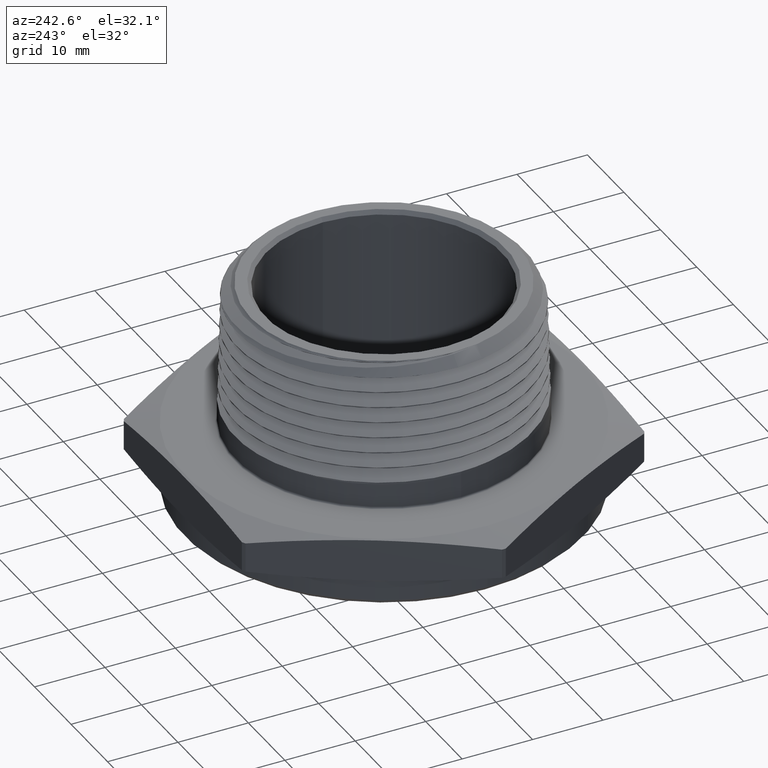
[diagram: clean part render]
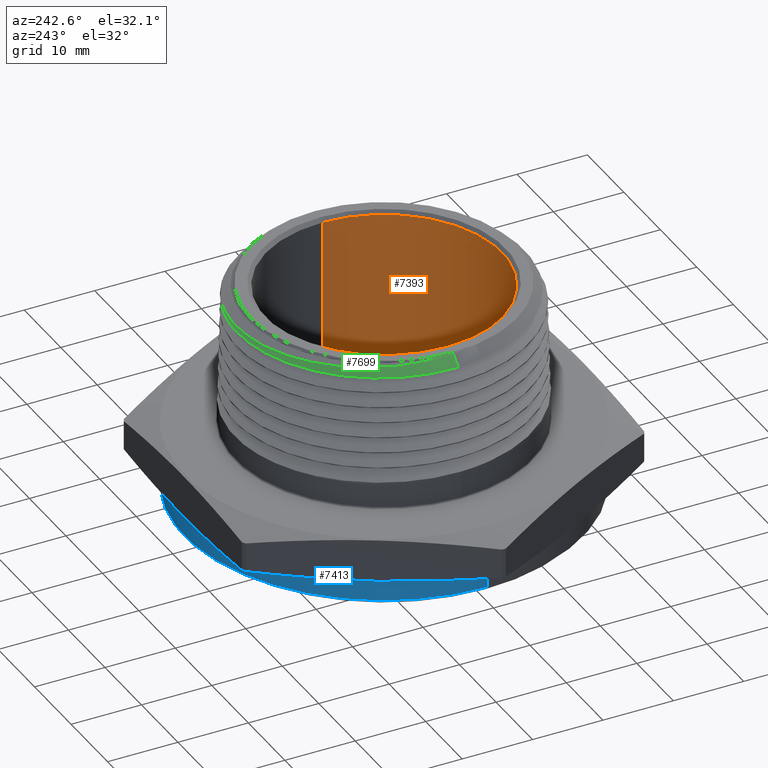
[diagram: same view with three faces highlighted in distinct colors, each labeled with its STEP entity id]
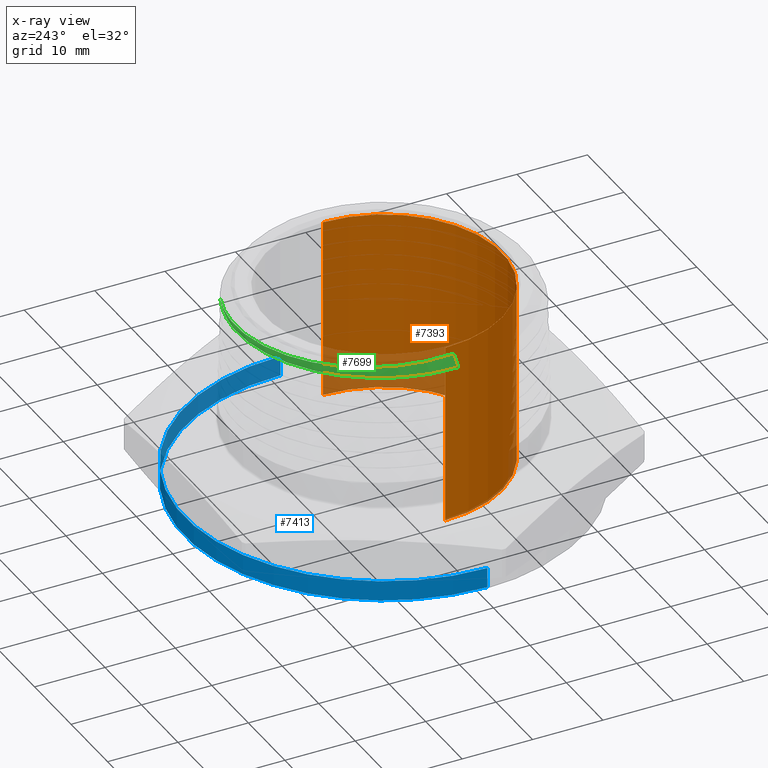
[diagram: x-ray of the same camera — body ghosted, the three highlighted faces saturated]
A machine part, auxiliary view with three faces highlighted in distinct colors.
The next image is the same camera in x-ray (body ghosted, the three faces saturated) — at least one of them is partly hidden behind the body in this view.
Their STEP definitions:

[orange] entity #7393 — the highlighted cylindrical surface (partial cylindrical patch) has radius 16.764 mm, axis along (-0, -0, 1).
#155 = EDGE_CURVE ( 'NONE', #294, #276, #3245, .T. ) ;
#157 = EDGE_CURVE ( 'NONE', #285, #294, #3248, .T. ) ;
#158 = EDGE_CURVE ( 'NONE', #285, #272, #3250, .T. ) ;
#161 = EDGE_CURVE ( 'NONE', #272, #276, #3254, .T. ) ;
#213 = AXIS2_PLACEMENT_3D ( 'NONE', #997, #998, #999 ) ;
#215 = AXIS2_PLACEMENT_3D ( 'NONE', #1008, #1009, #1010 ) ;
#236 = AXIS2_PLACEMENT_3D ( 'NONE', #5844, #5845, #5843 ) ;
#272 = VERTEX_POINT ( 'NONE', #5689 ) ;
#276 = VERTEX_POINT ( 'NONE', #1073 ) ;
#285 = VERTEX_POINT ( 'NONE', #5717 ) ;
#294 = VERTEX_POINT ( 'NONE', #5726 ) ;
#444 = EDGE_LOOP ( 'NONE', ( #466, #467, #7356, #7359 ) ) ;
#466 = ORIENTED_EDGE ( 'NONE', *, *, #157, .F. ) ;
#467 = ORIENTED_EDGE ( 'NONE', *, *, #158, .T. ) ;
#985 = DIRECTION ( 'NONE',  ( -0.0000000000000000000, -0.0000000000000000000, 1.000000000000000000 ) ) ;
#989 = CARTESIAN_POINT ( 'NONE',  ( 0.6600000000000000300, 0.0000000000000000000, -0.1499999999999999900 ) ) ;
#990 = CARTESIAN_POINT ( 'NONE',  ( -0.6600000000000000300, 8.082668874372531800E-017, -0.1499999999999999900 ) ) ;
#991 = DIRECTION ( 'NONE',  ( -0.0000000000000000000, -0.0000000000000000000, 1.000000000000000000 ) ) ;
#997 = CARTESIAN_POINT ( 'NONE',  ( 3.673940397442165500E-018, 0.0000000000000000000, 0.01748031496062993700 ) ) ;
#998 = DIRECTION ( 'NONE',  ( -0.0000000000000000000, -0.0000000000000000000, 1.000000000000000000 ) ) ;
#999 = DIRECTION ( 'NONE',  ( 1.000000000000000000, 0.0000000000000000000, 0.0000000000000000000 ) ) ;
#1008 = CARTESIAN_POINT ( 'NONE',  ( 3.673940397442165500E-018, 0.0000000000000000000, 1.030000000000000000 ) ) ;
#1009 = DIRECTION ( 'NONE',  ( -0.0000000000000000000, -0.0000000000000000000, 1.000000000000000000 ) ) ;
#1010 = DIRECTION ( 'NONE',  ( 1.000000000000000000, 0.0000000000000000000, 0.0000000000000000000 ) ) ;
#1073 = CARTESIAN_POINT ( 'NONE',  ( 0.6599999999999999200, 0.0000000000000000000, 1.030000000000000000 ) ) ;
#3245 = LINE ( 'NONE', #989, #3247 ) ;
#3247 = VECTOR ( 'NONE', #985, 39.37007874015748100 ) ;
#3248 = CIRCLE ( 'NONE', #213, 0.6600000000000000300 ) ;
#3250 = LINE ( 'NONE', #990, #3252 ) ;
#3252 = VECTOR ( 'NONE', #991, 39.37007874015748100 ) ;
#3254 = CIRCLE ( 'NONE', #215, 0.6599999999999999200 ) ;
#3272 = FACE_OUTER_BOUND ( 'NONE', #444, .T. ) ;
#3285 = CYLINDRICAL_SURFACE ( 'NONE', #236, 0.6600000000000000300 ) ;
#5689 = CARTESIAN_POINT ( 'NONE',  ( -0.6599999999999999200, 8.082668874372529300E-017, 1.030000000000000000 ) ) ;
#5717 = CARTESIAN_POINT ( 'NONE',  ( -0.6600000000000000300, 8.082668874372531800E-017, 0.01748031496062993700 ) ) ;
#5726 = CARTESIAN_POINT ( 'NONE',  ( 0.6600000000000000300, 0.0000000000000000000, 0.01748031496062993700 ) ) ;
#5843 = DIRECTION ( 'NONE',  ( 1.000000000000000000, 0.0000000000000000000, 0.0000000000000000000 ) ) ;
#5844 = CARTESIAN_POINT ( 'NONE',  ( 3.673940397442165500E-018, 0.0000000000000000000, -0.1499999999999999900 ) ) ;
#5845 = DIRECTION ( 'NONE',  ( -0.0000000000000000000, -0.0000000000000000000, 1.000000000000000000 ) ) ;
#7356 = ORIENTED_EDGE ( 'NONE', *, *, #161, .T. ) ;
#7359 = ORIENTED_EDGE ( 'NONE', *, *, #155, .F. ) ;
#7393 = ADVANCED_FACE ( 'NONE', ( #3272 ), #3285, .F. ) ;

[blue] entity #7413 — the highlighted cylindrical surface (partial cylindrical patch) has radius 28.321 mm, axis along (-0, -0, 1).
#136 = EDGE_CURVE ( 'NONE', #299, #290, #3221, .T. ) ;
#137 = EDGE_CURVE ( 'NONE', #290, #288, #3220, .T. ) ;
#138 = EDGE_CURVE ( 'NONE', #296, #288, #3223, .T. ) ;
#150 = EDGE_CURVE ( 'NONE', #296, #299, #3234, .T. ) ;
#200 = AXIS2_PLACEMENT_3D ( 'NONE', #944, #945, #946 ) ;
#210 = AXIS2_PLACEMENT_3D ( 'NONE', #982, #983, #984 ) ;
#255 = AXIS2_PLACEMENT_3D ( 'NONE', #5904, #5905, #5903 ) ;
#288 = VERTEX_POINT ( 'NONE', #5720 ) ;
#290 = VERTEX_POINT ( 'NONE', #5722 ) ;
#296 = VERTEX_POINT ( 'NONE', #5728 ) ;
#299 = VERTEX_POINT ( 'NONE', #5731 ) ;
#426 = EDGE_LOOP ( 'NONE', ( #7343, #7386, #7342, #7382 ) ) ;
#922 = CARTESIAN_POINT ( 'NONE',  ( -1.115000000000000200, 1.365481181049298900E-016, -0.1499999999999999900 ) ) ;
#923 = DIRECTION ( 'NONE',  ( -0.0000000000000000000, -0.0000000000000000000, 1.000000000000000000 ) ) ;
#939 = DIRECTION ( 'NONE',  ( -0.0000000000000000000, -0.0000000000000000000, 1.000000000000000000 ) ) ;
#943 = CARTESIAN_POINT ( 'NONE',  ( 1.115000000000000200, 0.0000000000000000000, -0.1499999999999999900 ) ) ;
#944 = CARTESIAN_POINT ( 'NONE',  ( 0.0000000000000000000, 0.0000000000000000000, -0.008097840331950385800 ) ) ;
#945 = DIRECTION ( 'NONE',  ( -6.274932739761922300E-017, -0.0000000000000000000, -1.000000000000000000 ) ) ;
#946 = DIRECTION ( 'NONE',  ( -1.000000000000000000, 0.0000000000000000000, 6.316632832884014900E-017 ) ) ;
#982 = CARTESIAN_POINT ( 'NONE',  ( 0.0000000000000000000, 0.0000000000000000000, -0.1200000000000012600 ) ) ;
#983 = DIRECTION ( 'NONE',  ( 0.0000000000000000000, 0.0000000000000000000, 1.000000000000000000 ) ) ;
#984 = DIRECTION ( 'NONE',  ( -1.000000000000000000, 0.0000000000000000000, 0.0000000000000000000 ) ) ;
#3220 = CIRCLE ( 'NONE', #200, 1.115000000000000200 ) ;
#3221 = LINE ( 'NONE', #922, #3222 ) ;
#3222 = VECTOR ( 'NONE', #923, 39.37007874015748100 ) ;
#3223 = LINE ( 'NONE', #943, #3225 ) ;
#3225 = VECTOR ( 'NONE', #939, 39.37007874015748100 ) ;
#3234 = CIRCLE ( 'NONE', #210, 1.115000000000000200 ) ;
#3321 = CYLINDRICAL_SURFACE ( 'NONE', #255, 1.115000000000000200 ) ;
#3322 = FACE_OUTER_BOUND ( 'NONE', #426, .T. ) ;
#5720 = CARTESIAN_POINT ( 'NONE',  ( 1.115000000000000200, 0.0000000000000000000, -0.008097840331950457000 ) ) ;
#5722 = CARTESIAN_POINT ( 'NONE',  ( -1.115000000000000200, 1.365481181049298900E-016, -0.008097840331950316400 ) ) ;
#5728 = CARTESIAN_POINT ( 'NONE',  ( 1.115000000000000200, 0.0000000000000000000, -0.1200000000000012600 ) ) ;
#5731 = CARTESIAN_POINT ( 'NONE',  ( -1.115000000000000200, 1.365481181049298900E-016, -0.1200000000000012600 ) ) ;
#5903 = DIRECTION ( 'NONE',  ( 1.000000000000000000, 0.0000000000000000000, 0.0000000000000000000 ) ) ;
#5904 = CARTESIAN_POINT ( 'NONE',  ( 0.0000000000000000000, 0.0000000000000000000, -0.1499999999999999900 ) ) ;
#5905 = DIRECTION ( 'NONE',  ( -0.0000000000000000000, -0.0000000000000000000, 1.000000000000000000 ) ) ;
#7342 = ORIENTED_EDGE ( 'NONE', *, *, #137, .T. ) ;
#7343 = ORIENTED_EDGE ( 'NONE', *, *, #150, .T. ) ;
#7382 = ORIENTED_EDGE ( 'NONE', *, *, #138, .F. ) ;
#7386 = ORIENTED_EDGE ( 'NONE', *, *, #136, .T. ) ;
#7413 = ADVANCED_FACE ( 'NONE', ( #3322 ), #3321, .T. ) ;

[green] entity #7699 — the highlighted conical surface has half-angle 45 deg.
#54 = EDGE_CURVE ( 'NONE', #6983, #7713, #3155, .T. ) ;
#56 = EDGE_CURVE ( 'NONE', #6983, #313, #7280, .T. ) ;
#57 = EDGE_CURVE ( 'NONE', #262, #7713, #7281, .T. ) ;
#100 = EDGE_CURVE ( 'NONE', #262, #313, #3184, .T. ) ;
#185 = AXIS2_PLACEMENT_3D ( 'NONE', #676, #677, #678 ) ;
#262 = VERTEX_POINT ( 'NONE', #5698 ) ;
#313 = VERTEX_POINT ( 'NONE', #5745 ) ;
#434 = EDGE_LOOP ( 'NONE', ( #5016, #5015, #5014, #5013 ) ) ;
#676 = CARTESIAN_POINT ( 'NONE',  ( 0.0000000000000000000, 0.0000000000000000000, 0.9790800544205556800 ) ) ;
#677 = DIRECTION ( 'NONE',  ( -0.0000000000000000000, -0.0000000000000000000, -1.000000000000000000 ) ) ;
#678 = DIRECTION ( 'NONE',  ( -1.000000000000000000, 0.0000000000000000000, 0.0000000000000000000 ) ) ;
#1139 = CARTESIAN_POINT ( 'NONE',  ( 0.0003822257375215578600, 0.8159603825915020500, 0.9796870384935335600 ) ) ;
#1142 = CARTESIAN_POINT ( 'NONE',  ( -0.7506761221030494600, 0.06591039529651300500, 1.040892532082198000 ) ) ;
#1143 = CARTESIAN_POINT ( 'NONE',  ( -0.7449228993975856000, 0.1309679138996525100, 1.038105727201005000 ) ) ;
#1144 = CARTESIAN_POINT ( 'NONE',  ( -0.7399597935217191400, 0.1631162304881085800, 1.036722561933940200 ) ) ;
#1145 = CARTESIAN_POINT ( 'NONE',  ( -0.7259289262074826200, 0.2266634002698999500, 1.033952497875803700 ) ) ;
#1146 = CARTESIAN_POINT ( 'NONE',  ( -0.7168522771483161200, 0.2580610325353321900, 1.032574836481218400 ) ) ;
#1147 = CARTESIAN_POINT ( 'NONE',  ( -0.6944567877345866300, 0.3200805533608012700, 1.029788786022279000 ) ) ;
#1148 = CARTESIAN_POINT ( 'NONE',  ( -0.6813661797325345500, 0.3500688601822691300, 1.028406687094236800 ) ) ;
#1149 = CARTESIAN_POINT ( 'NONE',  ( -0.6515882689974661400, 0.4079611058545262200, 1.025673281799201400 ) ) ;
#1150 = CARTESIAN_POINT ( 'NONE',  ( -0.6348996847766226200, 0.4358885387954430900, 1.024313566081411800 ) ) ;
#1151 = CARTESIAN_POINT ( 'NONE',  ( -0.6071633458218564900, 0.4762482874260500800, 1.022261983728518300 ) ) ;
#1152 = CARTESIAN_POINT ( 'NONE',  ( -0.5974644361580768700, 0.4894447529881411100, 1.021577850412735100 ) ) ;
#1153 = CARTESIAN_POINT ( 'NONE',  ( -0.5771403219209828600, 0.5153130614956921200, 1.020207232965090000 ) ) ;
#1154 = CARTESIAN_POINT ( 'NONE',  ( -0.5665355862329734000, 0.5279522497029794900, 1.019522336814195700 ) ) ;
#1155 = CARTESIAN_POINT ( 'NONE',  ( -0.5119525011951384700, 0.5889777180993915900, 1.016120697558582400 ) ) ;
#1156 = CARTESIAN_POINT ( 'NONE',  ( -0.4628360794540839500, 0.6316230588339206700, 1.013451398329416000 ) ) ;
#1157 = CARTESIAN_POINT ( 'NONE',  ( -0.3946668343143057700, 0.6772478007755833300, 1.010067790687665800 ) ) ;
#1158 = CARTESIAN_POINT ( 'NONE',  ( -0.3806466182875170600, 0.6860042240503931900, 1.009387353592761300 ) ) ;
#1159 = CARTESIAN_POINT ( 'NONE',  ( -0.3522727548204673800, 0.7025047878489671900, 1.008040009997463800 ) ) ;
#1160 = CARTESIAN_POINT ( 'NONE',  ( -0.3378876987306346800, 0.7102735392127106400, 1.007371438901322600 ) ) ;
#1161 = CARTESIAN_POINT ( 'NONE',  ( -0.2941534175909266100, 0.7321713693805336200, 1.005372093912726900 ) ) ;
#1162 = CARTESIAN_POINT ( 'NONE',  ( -0.2642300219906057500, 0.7449033299194948200, 1.004041013288028400 ) ) ;
#1163 = CARTESIAN_POINT ( 'NONE',  ( -0.2028539524398910400, 0.7666470470906512300, 1.001386933545837900 ) ) ;
#1164 = CARTESIAN_POINT ( 'NONE',  ( -0.1713288095590431700, 0.7756731071228136800, 1.000062603684705800 ) ) ;
#1165 = CARTESIAN_POINT ( 'NONE',  ( -0.1070058451641533700, 0.7898257579078494800, 0.9973880648691980700 ) ) ;
#1166 = CARTESIAN_POINT ( 'NONE',  ( -0.07472610461773109000, 0.7948402432928151100, 0.9960669764498369900 ) ) ;
#1167 = CARTESIAN_POINT ( 'NONE',  ( -0.009939416548406042300, 0.8009014364473979700, 0.9934468662463981100 ) ) ;
#1168 = CARTESIAN_POINT ( 'NONE',  ( 0.02256668886448477000, 0.8019565391017239300, 0.9921388845479897100 ) ) ;
#1169 = CARTESIAN_POINT ( 'NONE',  ( 0.07149562436769388300, 0.8005583028784966100, 0.9901708631367416300 ) ) ;
#1170 = CARTESIAN_POINT ( 'NONE',  ( 0.08783375107054654200, 0.7995929425625224500, 0.9895149483176796100 ) ) ;
#1171 = CARTESIAN_POINT ( 'NONE',  ( 0.1205679484613883100, 0.7966446188723239600, 0.9882007118084164000 ) ) ;
#1172 = CARTESIAN_POINT ( 'NONE',  ( 0.1369578616805201800, 0.7946580508458659400, 0.9875426151566119000 ) ) ;
#1173 = CARTESIAN_POINT ( 'NONE',  ( 0.2180233896296134000, 0.7823187839640984900, 0.9842684018269064500 ) ) ;
#1174 = CARTESIAN_POINT ( 'NONE',  ( 0.2809038887012196800, 0.7647662564041404200, 0.9816943008458067800 ) ) ;
#1175 = CARTESIAN_POINT ( 'NONE',  ( 0.3418004454692851700, 0.7394995440887116600, 0.9790800544205556800 ) ) ;
#1176 = CARTESIAN_POINT ( 'NONE',  ( 0.05590739452915700200, 0.8127493361839033300, 0.9790800544205557900 ) ) ;
#1178 = CARTESIAN_POINT ( 'NONE',  ( -0.05498116553721908000, 0.8134977100854340300, 0.9802920251006582700 ) ) ;
#1179 = CARTESIAN_POINT ( 'NONE',  ( -0.1649272569544739400, 0.7972607859240175000, 0.9815073115700141400 ) ) ;
#1180 = CARTESIAN_POINT ( 'NONE',  ( -0.2181553019147744200, 0.7836967351222724500, 0.9821086057646668500 ) ) ;
#1181 = CARTESIAN_POINT ( 'NONE',  ( -0.2954743366682828200, 0.7554774109732928000, 0.9830104837367108500 ) ) ;
#1182 = CARTESIAN_POINT ( 'NONE',  ( -0.3208231469754382300, 0.7447472726691568600, 0.9833123193137062200 ) ) ;
#1183 = CARTESIAN_POINT ( 'NONE',  ( -0.3581911840549490400, 0.7266077182204866400, 0.9837697464533656800 ) ) ;
#1184 = CARTESIAN_POINT ( 'NONE',  ( -0.3705667807975460100, 0.7202025319975600100, 0.9839231178207680200 ) ) ;
#1185 = CARTESIAN_POINT ( 'NONE',  ( -0.3948348412860620500, 0.7068405658508819500, 0.9842277394045495500 ) ) ;
#1186 = CARTESIAN_POINT ( 'NONE',  ( -0.4067522574446206200, 0.6998736019427727100, 0.9843792871868085600 ) ) ;
#1187 = CARTESIAN_POINT ( 'NONE',  ( -0.4652748672659356400, 0.6636334681920479400, 0.9851351520981411800 ) ) ;
#1188 = CARTESIAN_POINT ( 'NONE',  ( -0.5087168957607036700, 0.6301843679536522900, 0.9857382211666146900 ) ) ;
#1189 = CARTESIAN_POINT ( 'NONE',  ( -0.5687854551670535900, 0.5732852564311949900, 0.9866488083747130300 ) ) ;
#1190 = CARTESIAN_POINT ( 'NONE',  ( -0.5880443410477014200, 0.5530660650594743100, 0.9869570876102770100 ) ) ;
#1191 = CARTESIAN_POINT ( 'NONE',  ( -0.6240443819350095500, 0.5111371493809259100, 0.9875681593302893000 ) ) ;
#1192 = CARTESIAN_POINT ( 'NONE',  ( -0.6408541423436131500, 0.4893862832688085600, 0.9878708996480937100 ) ) ;
#1193 = CARTESIAN_POINT ( 'NONE',  ( -0.6721428447988714300, 0.4443446395139083500, 0.9884759343227078600 ) ) ;
#1194 = CARTESIAN_POINT ( 'NONE',  ( -0.6866204701002499600, 0.4210530116392690000, 0.9887797085748422100 ) ) ;
#1195 = CARTESIAN_POINT ( 'NONE',  ( -0.7132228679675183300, 0.3729153165485412100, 0.9893890398495041000 ) ) ;
#1196 = CARTESIAN_POINT ( 'NONE',  ( -0.7253850807383190900, 0.3479817928139756200, 0.9896950178322071500 ) ) ;
#1197 = CARTESIAN_POINT ( 'NONE',  ( -0.7579460572087699500, 0.2713365484212695300, 0.9906161185133468500 ) ) ;
#1198 = CARTESIAN_POINT ( 'NONE',  ( -0.7740873773467454900, 0.2187803935220445400, 0.9912240134591831000 ) ) ;
#1199 = CARTESIAN_POINT ( 'NONE',  ( -0.7901546050542306300, 0.1378108712265538000, 0.9921396870700507400 ) ) ;
#1200 = CARTESIAN_POINT ( 'NONE',  ( -0.7941444470800658200, 0.1104143311620601200, 0.9924481287959896500 ) ) ;
#1201 = CARTESIAN_POINT ( 'NONE',  ( -0.7992705265458894800, 0.05507664614157498800, 0.9930660592367759300 ) ) ;
#1202 = CARTESIAN_POINT ( 'NONE',  ( -0.8003785532827262200, 0.02749562575169247800, 0.9933714467172737300 ) ) ;
#1203 = CARTESIAN_POINT ( 'NONE',  ( -0.8000725450993546600, -2.945273618169283600E-016, 0.9936774549006445200 ) ) ;
#3155 = LINE ( 'NONE', #5636, #3156 ) ;
#3156 = VECTOR ( 'NONE', #5635, 39.37007874015748100 ) ;
#3184 = CIRCLE ( 'NONE', #185, 0.8146699455794440500 ) ;
#3358 = FACE_OUTER_BOUND ( 'NONE', #434, .T. ) ;
#3373 = CONICAL_SURFACE ( 'NONE', #7317, 0.8252827931274610000, 0.7853981633974541600 ) ;
#4903 = DIRECTION ( 'NONE',  ( -1.000000000000000000, 0.0000000000000000000, 0.0000000000000000000 ) ) ;
#4904 = CARTESIAN_POINT ( 'NONE',  ( 0.0000000000000000000, 0.0000000000000000000, 0.9684672068725388400 ) ) ;
#4905 = DIRECTION ( 'NONE',  ( -0.0000000000000000000, -0.0000000000000000000, -1.000000000000000000 ) ) ;
#4943 = CARTESIAN_POINT ( 'NONE',  ( -0.8000725450993546600, -2.945273618169283600E-016, 0.9936774549006445200 ) ) ;
#5013 = ORIENTED_EDGE ( 'NONE', *, *, #57, .T. ) ;
#5014 = ORIENTED_EDGE ( 'NONE', *, *, #100, .F. ) ;
#5015 = ORIENTED_EDGE ( 'NONE', *, *, #56, .T. ) ;
#5016 = ORIENTED_EDGE ( 'NONE', *, *, #54, .F. ) ;
#5635 = DIRECTION ( 'NONE',  ( -0.7071067811865516800, 0.0000000000000000000, -0.7071067811865433500 ) ) ;
#5636 = CARTESIAN_POINT ( 'NONE',  ( -0.8252827931274610000, 0.0000000000000000000, 0.9684672068725388400 ) ) ;
#5640 = CARTESIAN_POINT ( 'NONE',  ( -0.7500252292204397900, -1.306323699306776900E-013, 1.043724770779559200 ) ) ;
#5642 = CARTESIAN_POINT ( 'NONE',  ( -0.7514364348563948900, 0.03280875392348253000, 1.042313565143610000 ) ) ;
#5698 = CARTESIAN_POINT ( 'NONE',  ( 0.05590739452915700200, 0.8127493361839033300, 0.9790800544205557900 ) ) ;
#5745 = CARTESIAN_POINT ( 'NONE',  ( 0.3418004454692851700, 0.7394995440887116600, 0.9790800544205556800 ) ) ;
#5805 = CARTESIAN_POINT ( 'NONE',  ( -0.7500252292204397900, -1.306323699306776900E-013, 1.043724770779559200 ) ) ;
#6983 = VERTEX_POINT ( 'NONE', #5805 ) ;
#7280 = B_SPLINE_CURVE_WITH_KNOTS ( 'NONE', 3,
 ( #5640, #5642, #1142, #1143, #1144, #1145, #1146, #1147, #1148, #1149, #1150, #1151, #1152, #1153, #1154, #1155, #1156, #1157, #1158, #1159, #1160, #1161, #1162, #1163, #1164, #1165, #1166, #1167, #1168, #1169, #1170, #1171, #1172, #1173, #1174, #1175 ),
 .UNSPECIFIED., .F., .F.,
 ( 4, 2, 2, 2, 2, 2, 2, 2, 2, 2, 2, 2, 2, 2, 2, 2, 2, 4 ),
 ( 0.003072509283239645500, 0.005573580475924808100, 0.008074651668609968100, 0.01057572286129512800, 0.01307679405398029500, 0.01557786524666545900, 0.01682840084300803900, 0.01807893643935062200, 0.02308107882472094200, 0.02433161442106352200, 0.02558215001740610200, 0.02808322121009126200, 0.03058429240277641900, 0.03308536359546157500, 0.03558643478814673500, 0.03683697038448931900, 0.03808750598083190200, 0.04308964836620221600 ),
 .UNSPECIFIED. ) ;
#7281 = B_SPLINE_CURVE_WITH_KNOTS ( 'NONE', 3,
 ( #1176, #1139, #1178, #1179, #1180, #1181, #1182, #1183, #1184, #1185, #1186, #1187, #1188, #1189, #1190, #1191, #1192, #1193, #1194, #1195, #1196, #1197, #1198, #1199, #1200, #1201, #1202, #1203 ),
 .UNSPECIFIED., .F., .F.,
 ( 4, 2, 2, 2, 2, 2, 2, 2, 2, 2, 2, 2, 2, 4 ),
 ( 0.0000000000000000000, 0.004217357007584378100, 0.008434714015168752800, 0.01054339251896094100, 0.01159773177085703600, 0.01265207102275312800, 0.01686942803033750200, 0.01897810653412969300, 0.02108678503792187800, 0.02319546354171406500, 0.02530414204550624600, 0.02952149905309060800, 0.03163017755688279200, 0.03373885606067497000 ),
 .UNSPECIFIED. ) ;
#7317 = AXIS2_PLACEMENT_3D ( 'NONE', #4904, #4905, #4903 ) ;
#7699 = ADVANCED_FACE ( 'NONE', ( #3358 ), #3373, .T. ) ;
#7713 = VERTEX_POINT ( 'NONE', #4943 ) ;